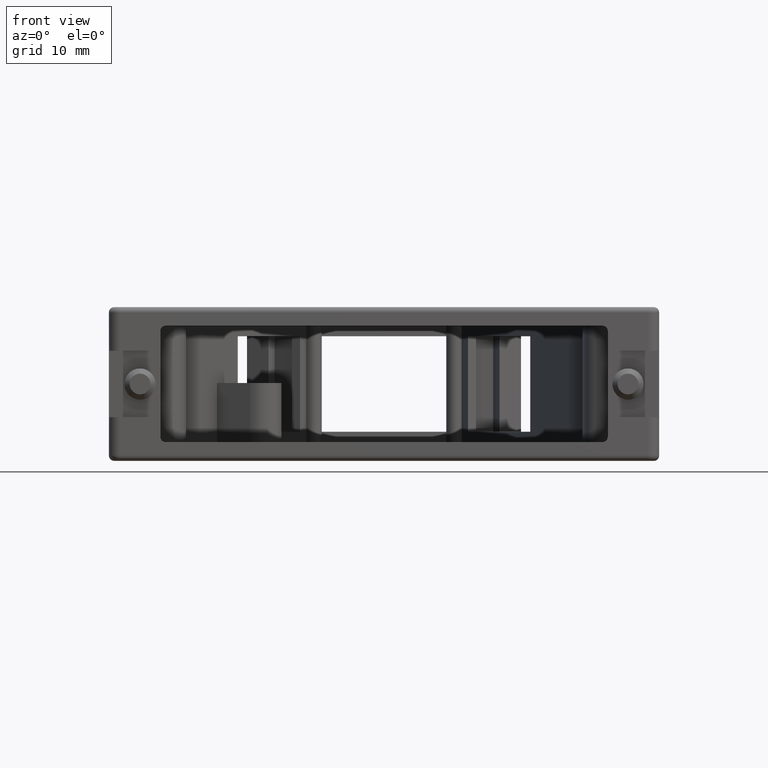
[diagram: clean part render]
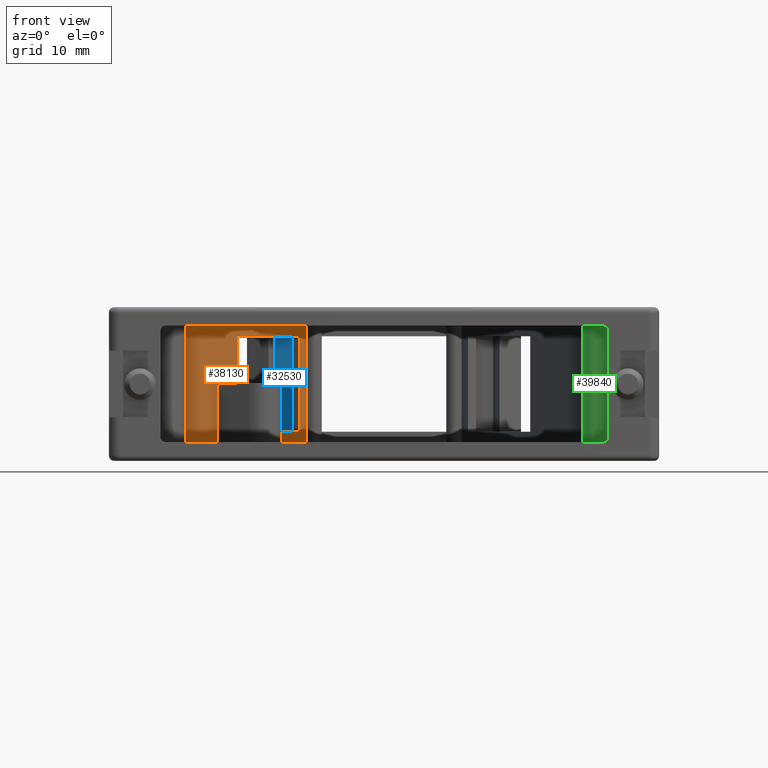
[diagram: same view with three faces highlighted in distinct colors, each labeled with its STEP entity id]
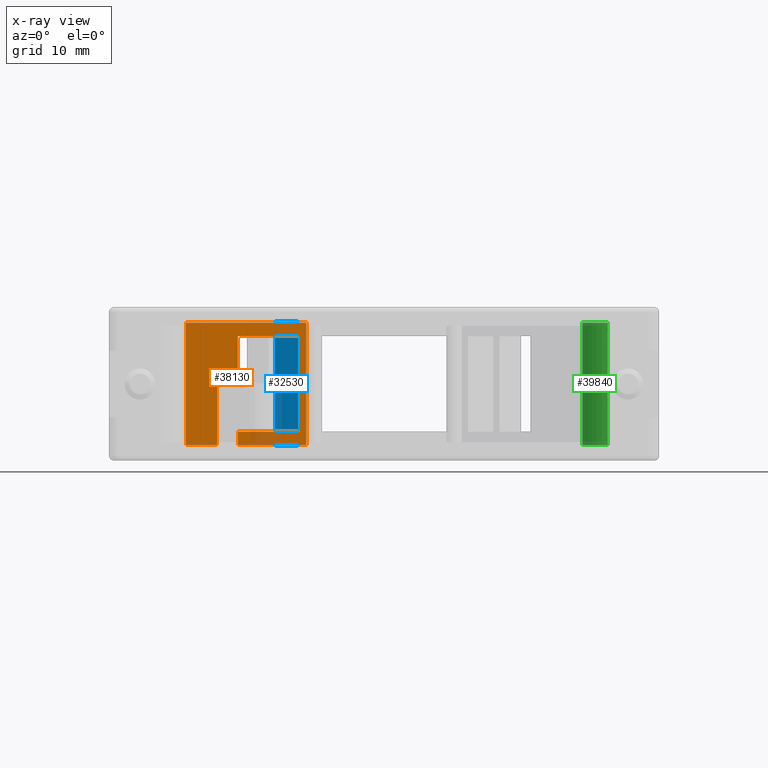
[diagram: x-ray of the same camera — body ghosted, the three highlighted faces saturated]
A machine part, front view with three faces highlighted in distinct colors.
The next image is the same camera in x-ray (body ghosted, the three faces saturated) — at least one of them is partly hidden behind the body in this view.
Their STEP definitions:

[orange] entity #38130 — the highlighted planar face has unit normal (0.866, -0.5, 0).
#200=CARTESIAN_POINT('',(41.9095498823282,32.4377531126037,-32.));
#210=VERTEX_POINT('',#200);
#240=CARTESIAN_POINT('',(23.2104719043193,0.05,-32.));
#250=DIRECTION('',(-0.5,-0.866025403784439,0.));
#260=VECTOR('',#250,1.);
#270=LINE('',#240,#260);
#280=CARTESIAN_POINT('',(35.9095498823282,22.0454482671904,-32.));
#290=VERTEX_POINT('',#280);
#300=EDGE_CURVE('',#210,#290,#270,.T.);
#590=CARTESIAN_POINT('',(35.9095498823282,22.0454482671904,-22.8));
#600=VERTEX_POINT('',#590);
#700=CARTESIAN_POINT('',(35.9095498823282,22.0454482671904,0.));
#710=DIRECTION('',(0.,0.,1.));
#720=VECTOR('',#710,1.);
#730=LINE('',#700,#720);
#740=CARTESIAN_POINT('',(35.9095498823282,22.0454482671904,-33.3));
#750=VERTEX_POINT('',#740);
#760=EDGE_CURVE('',#750,#290,#730,.T.);
#980=CARTESIAN_POINT('',(35.9095498823282,22.0454482671904,-27.3));
#990=VERTEX_POINT('',#980);
#1020=CARTESIAN_POINT('',(35.9095498823282,22.0454482671904,0.));
#1030=DIRECTION('',(0.,0.,1.));
#1040=VECTOR('',#1030,1.);
#1050=LINE('',#1020,#1040);
#1060=EDGE_CURVE('',#990,#600,#1050,.T.);
#1240=CARTESIAN_POINT('',(23.2104719043193,0.05,-22.8));
#1250=DIRECTION('',(-0.5,-0.866025403784439,0.));
#1260=VECTOR('',#1250,1.);
#1270=LINE('',#1240,#1260);
#1280=CARTESIAN_POINT('',(41.9095498823282,32.4377531126037,-22.8));
#1290=VERTEX_POINT('',#1280);
#1300=EDGE_CURVE('',#1290,#600,#1270,.T.);
#35140=CARTESIAN_POINT('',(30.9,13.3686533479473,-33.3));
#35150=VERTEX_POINT('',#35140);
#35180=CARTESIAN_POINT('',(23.2104719043193,0.05,-33.3));
#35190=DIRECTION('',(-0.5,-0.866025403784439,0.));
#35200=VECTOR('',#35190,1.);
#35210=LINE('',#35180,#35200);
#35220=CARTESIAN_POINT('',(33.9095498823282,18.5813466520527,-33.3));
#35230=VERTEX_POINT('',#35220);
#35240=EDGE_CURVE('',#35230,#35150,#35210,.T.);
#35420=CARTESIAN_POINT('',(42.5095498823282,33.476983597145,-33.3));
#35430=VERTEX_POINT('',#35420);
#35440=EDGE_CURVE('',#35430,#750,#35210,.T.);
#37450=CARTESIAN_POINT('',(30.9,13.3686533479473,-21.5));
#37460=VERTEX_POINT('',#37450);
#37490=CARTESIAN_POINT('',(30.9,13.3686533479473,0.));
#37500=DIRECTION('',(0.,0.,-1.));
#37510=VECTOR('',#37500,1.);
#37520=LINE('',#37490,#37510);
#37530=EDGE_CURVE('',#37460,#35150,#37520,.T.);
#37650=CARTESIAN_POINT('',(30.7133974596216,13.0454482671904,-27.4));
#37660=DIRECTION('',(0.866025403784439,-0.5,0.));
#37670=DIRECTION('',(-0.5,-0.866025403784439,0.));
#37680=AXIS2_PLACEMENT_3D('',#37650,#37660,#37670);
#37690=PLANE('',#37680);
#37700=ORIENTED_EDGE('',*,*,#37530,.T.);
#37710=CARTESIAN_POINT('',(23.2104719043193,0.05,-21.5));
#37720=DIRECTION('',(-0.5,-0.866025403784439,0.));
#37730=VECTOR('',#37720,1.);
#37740=LINE('',#37710,#37730);
#37750=CARTESIAN_POINT('',(42.5095498823282,33.476983597145,-21.5));
#37760=VERTEX_POINT('',#37750);
#37770=EDGE_CURVE('',#37760,#37460,#37740,.T.);
#37780=ORIENTED_EDGE('',*,*,#37770,.T.);
#37790=CARTESIAN_POINT('',(42.5095498823282,33.476983597145,0.));
#37800=DIRECTION('',(0.,0.,-1.));
#37810=VECTOR('',#37800,1.);
#37820=LINE('',#37790,#37810);
#37830=EDGE_CURVE('',#37760,#35430,#37820,.T.);
#37840=ORIENTED_EDGE('',*,*,#37830,.F.);
#37850=ORIENTED_EDGE('',*,*,#35440,.F.);
#37860=ORIENTED_EDGE('',*,*,#760,.F.);
#37870=ORIENTED_EDGE('',*,*,#300,.T.);
#37880=CARTESIAN_POINT('',(41.9095498823282,32.4377531126037,0.));
#37890=DIRECTION('',(0.,0.,-1.));
#37900=VECTOR('',#37890,1.);
#37910=LINE('',#37880,#37900);
#37920=EDGE_CURVE('',#1290,#210,#37910,.T.);
#37930=ORIENTED_EDGE('',*,*,#37920,.T.);
#37940=ORIENTED_EDGE('',*,*,#1300,.F.);
#37950=ORIENTED_EDGE('',*,*,#1060,.T.);
#37960=CARTESIAN_POINT('',(23.2104719043193,0.05,-27.3));
#37970=DIRECTION('',(-0.5,-0.866025403784439,0.));
#37980=VECTOR('',#37970,1.);
#37990=LINE('',#37960,#37980);
#38000=CARTESIAN_POINT('',(33.9095498823282,18.5813466520527,-27.3));
#38010=VERTEX_POINT('',#38000);
#38020=EDGE_CURVE('',#990,#38010,#37990,.T.);
#38030=ORIENTED_EDGE('',*,*,#38020,.F.);
#38040=CARTESIAN_POINT('',(33.9095498823282,18.5813466520527,0.));
#38050=DIRECTION('',(0.,0.,-1.));
#38060=VECTOR('',#38050,1.);
#38070=LINE('',#38040,#38060);
#38080=EDGE_CURVE('',#38010,#35230,#38070,.T.);
#38090=ORIENTED_EDGE('',*,*,#38080,.F.);
#38100=ORIENTED_EDGE('',*,*,#35240,.F.);
#38110=EDGE_LOOP('',(#38100,#38090,#38030,#37950,#37940,#37930,#37870,
#37860,#37850,#37840,#37780,#37700));
#38120=FACE_OUTER_BOUND('',#38110,.T.);
#38130=ADVANCED_FACE('',(#38120),#37690,.T.);

[blue] entity #32530 — the highlighted planar face has unit normal (-0.5, -0.866, -0).
#31230=CARTESIAN_POINT('',(39.4784609690827,35.226983597145,-33.4));
#31240=VERTEX_POINT('',#31230);
#31270=CARTESIAN_POINT('',(0.,58.019883664837,-33.4));
#31280=DIRECTION('',(-0.866025403784439,0.5,0.));
#31290=VECTOR('',#31280,1.);
#31300=LINE('',#31270,#31290);
#31310=CARTESIAN_POINT('',(41.7301270189222,33.926983597145,-33.4));
#31320=VERTEX_POINT('',#31310);
#31330=EDGE_CURVE('',#31320,#31240,#31300,.T.);
#32080=CARTESIAN_POINT('',(39.4784609690827,35.226983597145,-21.4));
#32090=VERTEX_POINT('',#32080);
#32120=CARTESIAN_POINT('',(39.4784609690826,35.226983597145,0.));
#32130=DIRECTION('',(0.,0.,-1.));
#32140=VECTOR('',#32130,1.);
#32150=LINE('',#32120,#32140);
#32160=EDGE_CURVE('',#32090,#31240,#32150,.T.);
#32300=CARTESIAN_POINT('',(39.5650635094611,35.176983597145,-27.4));
#32310=DIRECTION('',(-0.5,-0.866025403784439,-0.));
#32320=DIRECTION('',(-0.866025403784439,0.5,0.));
#32330=AXIS2_PLACEMENT_3D('',#32300,#32310,#32320);
#32340=PLANE('',#32330);
#32350=CARTESIAN_POINT('',(0.,58.019883664837,-21.4));
#32360=DIRECTION('',(-0.866025403784439,0.5,0.));
#32370=VECTOR('',#32360,1.);
#32380=LINE('',#32350,#32370);
#32390=CARTESIAN_POINT('',(41.7301270189222,33.926983597145,-21.4));
#32400=VERTEX_POINT('',#32390);
#32410=EDGE_CURVE('',#32400,#32090,#32380,.T.);
#32420=ORIENTED_EDGE('',*,*,#32410,.T.);
#32430=CARTESIAN_POINT('',(41.7301270189222,33.926983597145,0.));
#32440=DIRECTION('',(0.,0.,-1.));
#32450=VECTOR('',#32440,1.);
#32460=LINE('',#32430,#32450);
#32470=EDGE_CURVE('',#32400,#31320,#32460,.T.);
#32480=ORIENTED_EDGE('',*,*,#32470,.F.);
#32490=ORIENTED_EDGE('',*,*,#31330,.F.);
#32500=ORIENTED_EDGE('',*,*,#32160,.T.);
#32510=EDGE_LOOP('',(#32500,#32490,#32480,#32420));
#32520=FACE_OUTER_BOUND('',#32510,.T.);
#32530=ADVANCED_FACE('',(#32520),#32340,.T.);

[green] entity #39840 — the highlighted cylindrical surface (edge-blend (fillet) strip) has radius 2.45 mm, axis along (0, 0, -1).
#32800=CARTESIAN_POINT('',(69.1,10.3999997886467,-21.5));
#32810=VERTEX_POINT('',#32800);
#32840=CARTESIAN_POINT('',(69.1,10.3999997886467,0.));
#32850=DIRECTION('',(0.,0.,-1.));
#32860=VECTOR('',#32850,1.);
#32870=LINE('',#32840,#32860);
#32880=CARTESIAN_POINT('',(69.1,10.3999997886467,-33.3));
#32890=VERTEX_POINT('',#32880);
#32900=EDGE_CURVE('',#32810,#32890,#32870,.T.);
#34140=CARTESIAN_POINT('',(71.55,7.94999978864671,-21.5));
#34150=VERTEX_POINT('',#34140);
#34600=CARTESIAN_POINT('',(71.55,7.94999978864671,-33.3));
#34610=VERTEX_POINT('',#34600);
#34640=CARTESIAN_POINT('',(71.55,7.94999978864671,0.));
#34650=DIRECTION('',(0.,0.,-1.));
#34660=VECTOR('',#34650,1.);
#34670=LINE('',#34640,#34660);
#34680=EDGE_CURVE('',#34150,#34610,#34670,.T.);
#34860=CARTESIAN_POINT('',(71.55,10.3999997886467,-33.3));
#34870=DIRECTION('',(0.,0.,-1.));
#34880=DIRECTION('',(-1.,0.,0.));
#34890=AXIS2_PLACEMENT_3D('',#34860,#34870,#34880);
#34900=CIRCLE('',#34890,2.45);
#34910=EDGE_CURVE('',#34610,#32890,#34900,.T.);
#39670=CARTESIAN_POINT('',(71.55,10.3999997886467,0.));
#39680=DIRECTION('',(0.,0.,-1.));
#39690=DIRECTION('',(-1.,0.,0.));
#39700=AXIS2_PLACEMENT_3D('',#39670,#39680,#39690);
#39710=CYLINDRICAL_SURFACE('',#39700,2.45);
#39720=ORIENTED_EDGE('',*,*,#34910,.F.);
#39730=ORIENTED_EDGE('',*,*,#32900,.T.);
#39740=CARTESIAN_POINT('',(71.55,10.3999997886467,-21.5));
#39750=DIRECTION('',(0.,0.,-1.));
#39760=DIRECTION('',(-1.,0.,0.));
#39770=AXIS2_PLACEMENT_3D('',#39740,#39750,#39760);
#39780=CIRCLE('',#39770,2.45);
#39790=EDGE_CURVE('',#34150,#32810,#39780,.T.);
#39800=ORIENTED_EDGE('',*,*,#39790,.T.);
#39810=ORIENTED_EDGE('',*,*,#34680,.F.);
#39820=EDGE_LOOP('',(#39810,#39800,#39730,#39720));
#39830=FACE_OUTER_BOUND('',#39820,.T.);
#39840=ADVANCED_FACE('',(#39830),#39710,.T.);